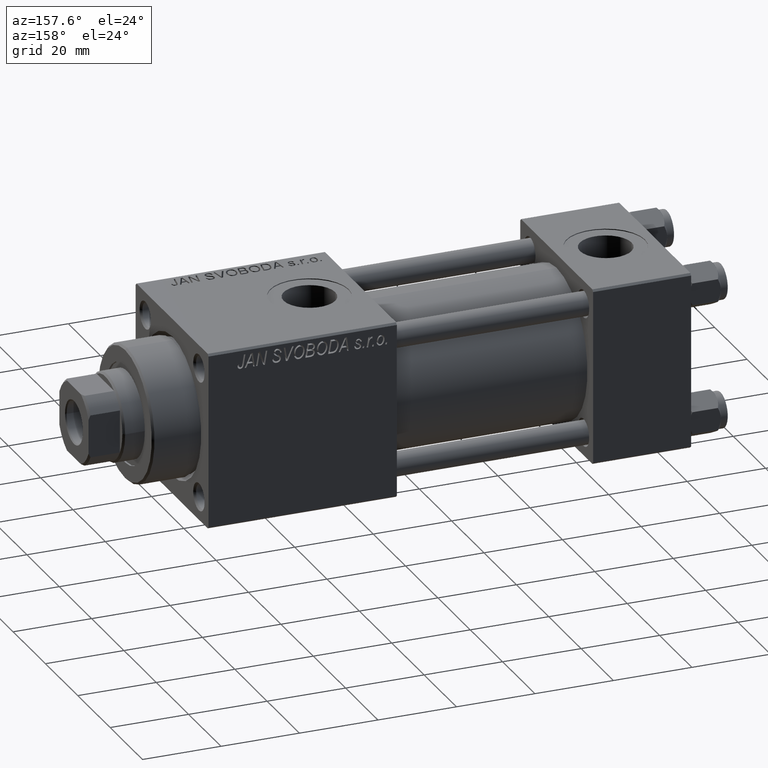
[diagram: clean part render]
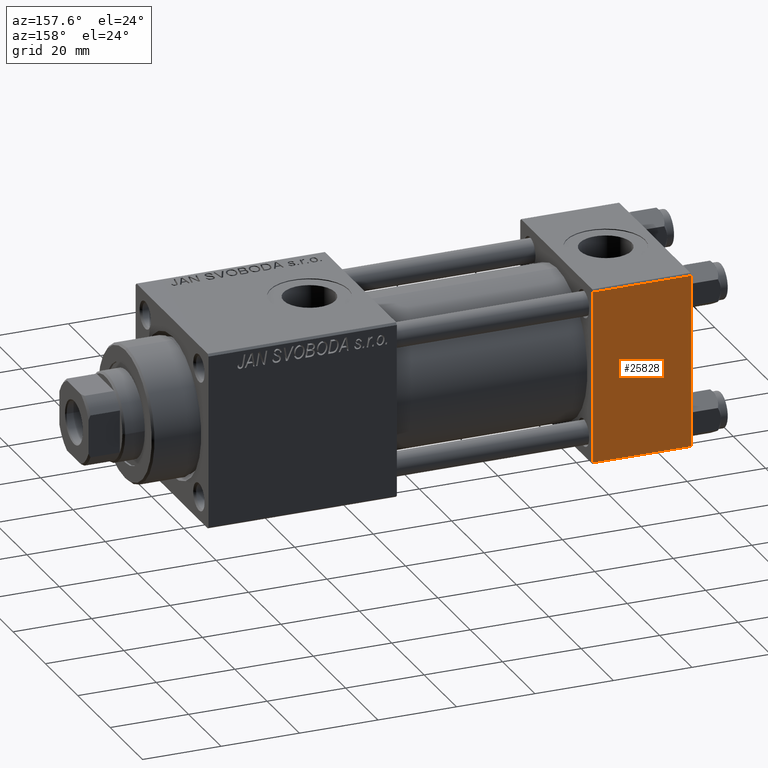
[diagram: same view with one face highlighted and labeled with its STEP entity id]
A machine part, auxiliary view. The second image highlights one B-rep face of the part: STEP entity #25828.
In plain terms, the highlighted planar face has unit normal (0, 1, 0).
Its self-contained STEP definition (entity closure, byte-faithful):
#1055 = DIRECTION ( 'NONE',  ( 0.000000000000000000, 0.000000000000000000, -1.000000000000000000 ) ) ;
#1294 = VERTEX_POINT ( 'NONE', #18371 ) ;
#2295 = CARTESIAN_POINT ( 'NONE',  ( 0.000000000000000000, 22.50000000000000000, 21.99999999999999645 ) ) ;
#2975 = ORIENTED_EDGE ( 'NONE', *, *, #19501, .T. ) ;
#4334 = ORIENTED_EDGE ( 'NONE', *, *, #50573, .T. ) ;
#7543 = CARTESIAN_POINT ( 'NONE',  ( 25.00000000000000000, 22.50000000000000000, 22.50000000000000355 ) ) ;
#8774 = VERTEX_POINT ( 'NONE', #25713 ) ;
#8871 = CARTESIAN_POINT ( 'NONE',  ( 25.00000000000000000, 22.50000000000000000, -21.99999999999998224 ) ) ;
#10004 = VECTOR ( 'NONE', #1055, 1000.000000000000000 ) ;
#11626 = ORIENTED_EDGE ( 'NONE', *, *, #27336, .T. ) ;
#11643 = DIRECTION ( 'NONE',  ( 0.000000000000000000, 0.000000000000000000, -1.000000000000000000 ) ) ;
#13079 = DIRECTION ( 'NONE',  ( -1.000000000000000000, 0.000000000000000000, 0.000000000000000000 ) ) ;
#14504 = VECTOR ( 'NONE', #48081, 1000.000000000000000 ) ;
#15865 = VECTOR ( 'NONE', #11643, 1000.000000000000000 ) ;
#17689 = EDGE_CURVE ( 'NONE', #29944, #1294, #20293, .T. ) ;
#18151 = ORIENTED_EDGE ( 'NONE', *, *, #17689, .F. ) ;
#18281 = VERTEX_POINT ( 'NONE', #23309 ) ;
#18371 = CARTESIAN_POINT ( 'NONE',  ( 0.000000000000000000, 22.50000000000000000, -21.99999999999996803 ) ) ;
#19501 = EDGE_CURVE ( 'NONE', #8774, #18281, #49057, .T. ) ;
#20293 = LINE ( 'NONE', #27893, #15865 ) ;
#23309 = CARTESIAN_POINT ( 'NONE',  ( 25.00000000000000000, 22.50000000000000000, -21.99999999999996803 ) ) ;
#23798 = PLANE ( 'NONE',  #50485 ) ;
#24062 = DIRECTION ( 'NONE',  ( 0.000000000000000000, -0.000000000000000000, 1.000000000000000000 ) ) ;
#24394 = EDGE_LOOP ( 'NONE', ( #2975, #4334, #18151, #11626 ) ) ;
#25713 = CARTESIAN_POINT ( 'NONE',  ( 25.00000000000000000, 22.50000000000000000, 21.99999999999999645 ) ) ;
#25828 = ADVANCED_FACE ( 'NONE', ( #31167 ), #23798, .T. ) ;
#25905 = VECTOR ( 'NONE', #13079, 1000.000000000000000 ) ;
#27336 = EDGE_CURVE ( 'NONE', #29944, #8774, #40480, .T. ) ;
#27893 = CARTESIAN_POINT ( 'NONE',  ( 0.000000000000000000, 22.50000000000000000, 22.50000000000000355 ) ) ;
#29944 = VERTEX_POINT ( 'NONE', #2295 ) ;
#31167 = FACE_OUTER_BOUND ( 'NONE', #24394, .T. ) ;
#36026 = CARTESIAN_POINT ( 'NONE',  ( 25.00000000000000000, 22.50000000000000000, 21.99999999999999645 ) ) ;
#37508 = CARTESIAN_POINT ( 'NONE',  ( 25.00000000000000000, 22.50000000000000000, 22.50000000000000355 ) ) ;
#40480 = LINE ( 'NONE', #36026, #14504 ) ;
#40630 = LINE ( 'NONE', #8871, #25905 ) ;
#47676 = DIRECTION ( 'NONE',  ( -0.000000000000000000, 1.000000000000000000, 0.000000000000000000 ) ) ;
#48081 = DIRECTION ( 'NONE',  ( 1.000000000000000000, 0.000000000000000000, 0.000000000000000000 ) ) ;
#49057 = LINE ( 'NONE', #37508, #10004 ) ;
#50485 = AXIS2_PLACEMENT_3D ( 'NONE', #7543, #47676, #24062 ) ;
#50573 = EDGE_CURVE ( 'NONE', #18281, #1294, #40630, .T. ) ;